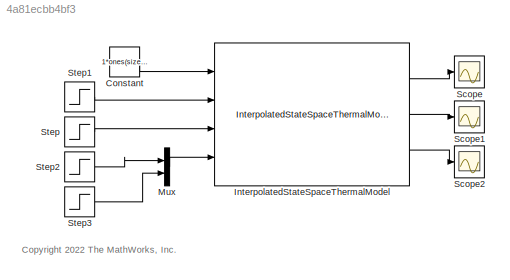
MODEL slx_4a81ecbb4bf3
KIND model
CONFIG AbsTol = 1e-3
CONFIG EnableMultiTasking = off
CONFIG FixedStep = 0.2
CONFIG MaxStep = auto
CONFIG MinStep = auto
CONFIG RelTol = 1e-3
CONFIG SampleTimeConstraint = Unconstrained
CONFIG SolverName = VariableStepAuto
CONFIG StartTime = 0.0
CONFIG StopTime = 4000
BLOCK [Constant] Constant
  Value = 1*ones(size(TnodesInit))
BLOCK [Reference] InterpolatedStateSpaceThermalModel  REF=mcadROM_lib/InterpolatedStateSpaceThermalModel
  Ports = [4, 3]
  SourceBlock = mcadROM_lib/InterpolatedStateSpaceThermalModel
BLOCK [Mux] Mux
  DisplayOption = bar
  Inputs = 2
  Ports = [2, 1]
BLOCK [Scope] Scope
  Floating = off
  NumInputPorts = 1
  Ports = [1]
  ScopeSpecificationString = Simulink.scopes.TimeScopeBlockCfg('CurrentConfiguration', extmgr.ConfigurationSet(extmgr.Configuration('Core','General UI',true),extmgr.Configuration('Core','Source UI',true),extmgr.Configuration('Sources','WiredSimulink',true),extmgr.Configuration('Visuals','Time Domain',true,'SerializedDisplays',{struct('MinYLimReal','16.31027','MaxYLimReal','48.19017','YLabelReal','','MinYLimMag','16.31027','Ma...<+1380ch>
BLOCK [Scope] Scope1
  Floating = off
  NumInputPorts = 1
  Ports = [1]
  ScopeSpecificationString = Simulink.scopes.TimeScopeBlockCfg('CurrentConfiguration', extmgr.ConfigurationSet(extmgr.Configuration('Core','General UI',true),extmgr.Configuration('Core','Source UI',true),extmgr.Configuration('Sources','WiredSimulink',true,'DataLoggingVariableName','ScopeData1'),extmgr.Configuration('Visuals','Time Domain',true,'SerializedDisplays',{struct('MinYLimReal','0.9','MaxYLimReal','1.1','YLabelReal','...<+6505ch>
BLOCK [Scope] Scope2
  Floating = off
  NumInputPorts = 1
  Ports = [1]
  ScopeSpecificationString = Simulink.scopes.TimeScopeBlockCfg('CurrentConfiguration', extmgr.ConfigurationSet(extmgr.Configuration('Core','General UI',true),extmgr.Configuration('Core','Source UI',true),extmgr.Configuration('Sources','WiredSimulink',true,'DataLoggingVariableName','ScopeData2'),extmgr.Configuration('Visuals','Time Domain',true,'SerializedDisplays',{struct('MinYLimReal','16.8749','MaxYLimReal','48.12592','YLab...<+1390ch>
BLOCK [Step] Step
  After = [9,10]
  Before = [5,6]
  SampleTime = 0
  Time = 1500
BLOCK [Step] Step1
  After = 4000
  Before = 1000
  SampleTime = 0
  Time = 2500
BLOCK [Step] Step2
  After = 30
  Before = 25
  SampleTime = 0
  Time = 1000
BLOCK [Step] Step3
  After = 45
  Before = 35
  SampleTime = 0
  Time = 3000
ANNOTATION (root): <copyright redacted>
LINE Constant:1 -> InterpolatedStateSpaceThermalModel:1
LINE InterpolatedStateSpaceThermalModel:1 -> Scope:1
LINE InterpolatedStateSpaceThermalModel:2 -> Scope1:1
LINE InterpolatedStateSpaceThermalModel:3 -> Scope2:1
LINE Mux:1 -> InterpolatedStateSpaceThermalModel:4
LINE Step1:1 -> InterpolatedStateSpaceThermalModel:2
LINE Step2:1 -> Mux:1
LINE Step3:1 -> Mux:2
LINE Step:1 -> InterpolatedStateSpaceThermalModel:3
